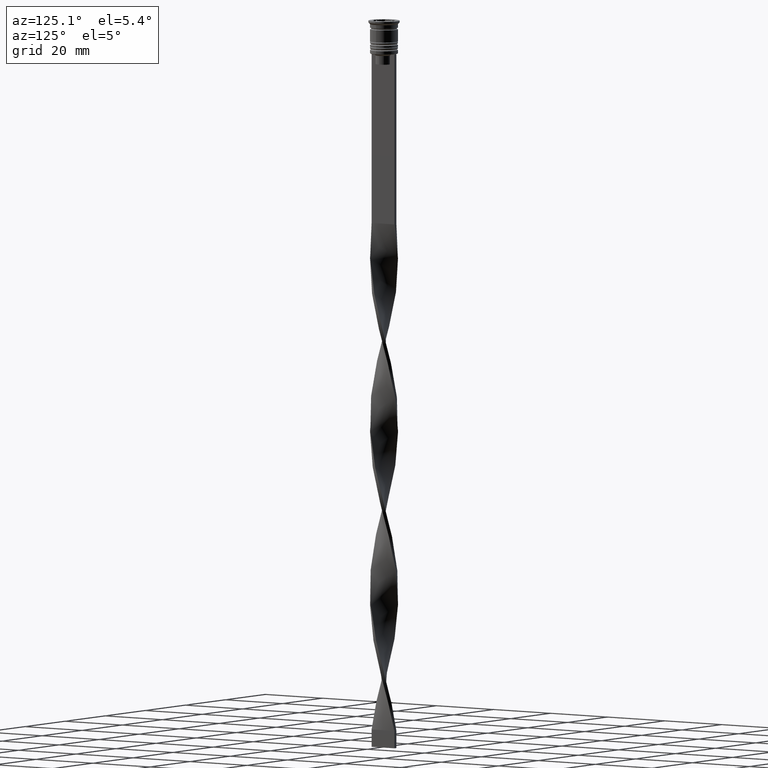
[diagram: clean part render]
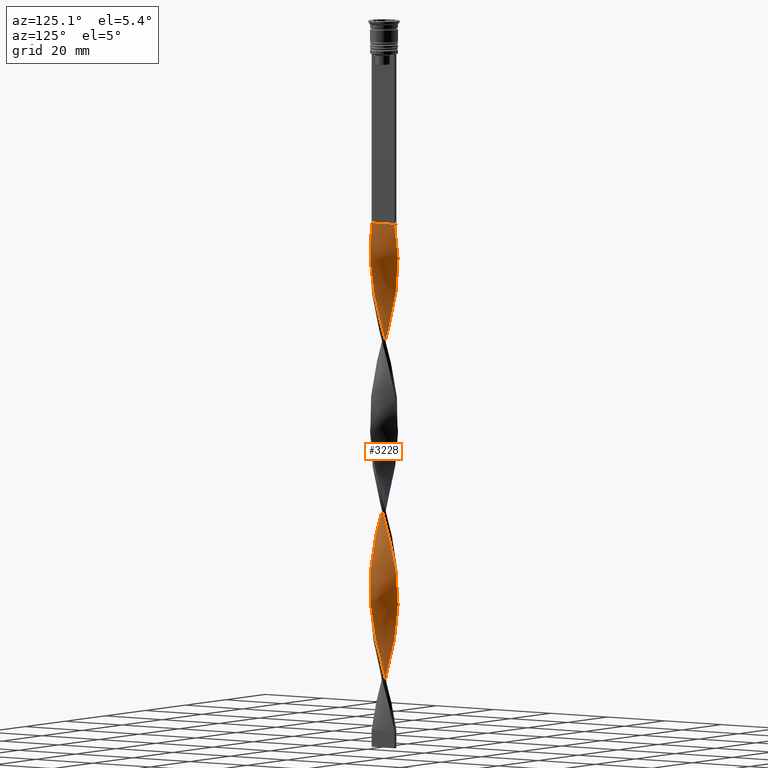
[diagram: same view with one face highlighted and labeled with its STEP entity id]
A machine part, auxiliary view. The second image highlights one B-rep face of the part: STEP entity #3228.
In plain terms, the highlighted face is a freeform B-spline surface patch.
Its self-contained STEP definition (entity closure, byte-faithful):
#5 = CARTESIAN_POINT ( 'NONE',  ( -0.1293454150318815721, 4.046331823121016136, -203.0686274509803582 ) ) ;
#6 = VERTEX_POINT ( 'NONE', #3925 ) ;
#14 = CARTESIAN_POINT ( 'NONE',  ( 3.493386227310586900, 2.011529931876904875, -141.5196078431372371 ) ) ;
#17 = VERTEX_POINT ( 'NONE', #3031 ) ;
#29 = CARTESIAN_POINT ( 'NONE',  ( 3.856468655234277065, 1.231739002543613681, -85.69607843137254122 ) ) ;
#48 = CARTESIAN_POINT ( 'NONE',  ( -0.6163684578805429526, -4.001202492166770597, -151.5392156862744741 ) ) ;
#50 = ORIENTED_EDGE ( 'NONE', *, *, #2481, .T. ) ;
#71 = CARTESIAN_POINT ( 'NONE',  ( 2.325278115975899951, 3.292883490705914795, -95.71568627450979250 ) ) ;
#89 = CARTESIAN_POINT ( 'NONE',  ( -3.493386227310585568, 2.011529931876906208, -121.4803921568627345 ) ) ;
#90 = CARTESIAN_POINT ( 'NONE',  ( 0.2435115214243295800, -4.023767157643892034, -110.0294117647058698 ) ) ;
#94 = CARTESIAN_POINT ( 'NONE',  ( -3.151094474987766958, 2.541679576361500104, -74.24509803921567652 ) ) ;
#103 = CARTESIAN_POINT ( 'NONE',  ( -0.4999999999999994449, 4.000000000000000000, -204.5000000000000000 ) ) ;
#107 = CARTESIAN_POINT ( 'NONE',  ( -3.856468655234277065, -1.231739002543614125, -134.3627450980391984 ) ) ;
#109 = CARTESIAN_POINT ( 'NONE',  ( -3.984134067727318040, -0.6137391387019219824, -184.4607843137254690 ) ) ;
#132 = CARTESIAN_POINT ( 'NONE',  ( 1.680620083644616569, -3.664084624357134334, -115.7549019607843093 ) ) ;
#138 = CARTESIAN_POINT ( 'NONE',  ( -0.2435115214243304405, 4.023767157643892034, -61.36274509803921262 ) ) ;
#150 = CARTESIAN_POINT ( 'NONE',  ( 1.911202779450789535, -3.549268084523846678, -161.5588235294117680 ) ) ;
#151 = CARTESIAN_POINT ( 'NONE',  ( -1.226484621108232531, -3.840017639827321805, -201.6372549019607732 ) ) ;
#157 = CARTESIAN_POINT ( 'NONE',  ( 0.5000000000000000000, 4.000000000000000000, -58.50000000000000000 ) ) ;
#169 = CARTESIAN_POINT ( 'NONE',  ( 3.856468655234276621, 1.231739002543613681, -85.69607843137254122 ) ) ;
#194 = CARTESIAN_POINT ( 'NONE',  ( -2.630408706874892033, -3.077414741952792632, -142.9509803921568789 ) ) ;
#200 = CARTESIAN_POINT ( 'NONE',  ( -3.984134067727318040, -0.6137391387019219824, -184.4607843137254690 ) ) ;
#211 = CARTESIAN_POINT ( 'NONE',  ( 4.029070884911789108, 0.1287936502943091699, -81.40196078431371518 ) ) ;
#217 = CARTESIAN_POINT ( 'NONE',  ( 4.029070884911789996, -0.1287936502943111128, -132.9313725490196134 ) ) ;
#219 = CARTESIAN_POINT ( 'NONE',  ( 0.1293454150318809337, 4.046331823121015248, -59.93137254901961342 ) ) ;
#227 = CARTESIAN_POINT ( 'NONE',  ( -3.936802525448487522, -0.8669405260007234659, -132.9313725490196134 ) ) ;
#229 =( BOUNDED_SURFACE ( )  B_SPLINE_SURFACE ( 1, 2, ( 
 ( #276, #219, #2668, #2089, #531, #3301, #1788, #2351, #3000, #1149, #1483, #515, #2632, #808, #3839, #3562, #2703, #549, #1109, #828, #2049, #3278, #2370, #3578, #844, #1185, #2409, #2332, #2107, #1768, #495, #3539, #2983, #2032, #3246, #3755, #90, #2507, #2860, #903, #132, #1944, #1526, #3154, #3411, #429, #1025, #3017, #1345, #3637, #2821, #704, #2247, #3335, #2838, #1303, #3318, #393, #14, #2429, #2126, #3453, #606, #1824, #1605, #1905, #3436, #292, #3039, #3138, #2204, #682, #588, #1621, #3771, #410, #3120, #2525, #3734, #982, #1004, #1639, #2566, #1042, #3715, #1806, #1502, #317, #109, #2746, #2228, #722, #1285, #2724, #1925, #3935, #1325, #1209, #2547, #2266, #151, #798, #3177 ),
 ( #3868, #2023, #1701, #1434, #3237, #2342, #2917, #2005, #2658, #1402, #2624, #3830, #507, #2936, #2896, #1063, #211, #1723, #1419, #169, #3790, #1101, #2640, #3472, #3848, #3812, #741, #1382, #452, #1966, #3531, #3514, #1117, #2287, #3496, #3552, #1986, #820, #2953, #765, #2042, #469, #1665, #3256, #2879, #524, #3218, #783, #2306, #1084, #2324, #1740, #227, #1363, #2605, #2583, #3201, #1682, #486, #194, #3905, #1219, #562, #3052, #1495, #330, #3887, #1537, #2713, #1141, #2973, #3629, #2058, #3011, #2076, #2696, #286, #2757, #895, #581, #2363, #2118, #2440, #1798, #875, #3571, #3923, #1199, #2421, #3328, #1816, #1780, #1159, #3028, #599, #306, #2994, #2679, #1516, #2738, #838, #5, #1176 ) ),
 .UNSPECIFIED., .F., .F., .T. ) 
 B_SPLINE_SURFACE_WITH_KNOTS ( ( 2, 2 ),
 ( 3, 2, 2, 2, 2, 2, 2, 2, 2, 2, 2, 2, 2, 2, 2, 2, 2, 2, 2, 2, 2, 2, 2, 2, 2, 2, 2, 2, 2, 2, 2, 2, 2, 2, 2, 2, 2, 2, 2, 2, 2, 2, 2, 2, 2, 2, 2, 2, 2, 2, 2, 3 ),
 ( 0.000000000000000000, 1.000000000000000000 ),
 ( 0.000000000000000000, 0.01470588235294117627, 0.02941176470588235253, 0.04411764705882353227, 0.05882352941176470507, 0.07352941176470588480, 0.08823529411764706454, 0.1029411764705882304, 0.1176470588235294101, 0.1323529411764705899, 0.1470588235294117696, 0.1617647058823529493, 0.1764705882352941291, 0.1911764705882352811, 0.2058823529411764608, 0.2205882352941176405, 0.2352941176470588203, 0.2500000000000000000, 0.2647058823529411797, 0.2794117647058823595, 0.2941176470588235392, 0.3088235294117647189, 0.3235294117647058987, 0.3382352941176470784, 0.3529411764705882582, 0.3676470588235294379, 0.3823529411764705621, 0.3970588235294117418, 0.4117647058823529216, 0.4264705882352941013, 0.4411764705882352811, 0.4558823529411764608, 0.4705882352941176405, 0.4852941176470588203, 0.5000000000000000000, 0.5147058823529411242, 0.5294117647058823595, 0.5441176470588234837, 0.5588235294117647189, 0.5735294117647058432, 0.5882352941176470784, 0.6029411764705882026, 0.6176470588235294379, 0.6323529411764705621, 0.6470588235294117974, 0.6617647058823529216, 0.6764705882352941568, 0.6911764705882352811, 0.7058823529411765163, 0.7205882352941176405, 0.7352941176470588758, 0.7500000000000000000 ),
 .UNSPECIFIED. ) 
 GEOMETRIC_REPRESENTATION_ITEM ( )  RATIONAL_B_SPLINE_SURFACE ( (
 ( 1.000000000000000000, 0.9957341762950344677, 1.000000000000000000, 0.9957341762950344677, 1.000000000000000000, 0.9957341762950344677, 1.000000000000000000, 0.9957341762950344677, 1.000000000000000000, 0.9957341762950344677, 1.000000000000000000, 0.9957341762950344677, 1.000000000000000000, 0.9957341762950344677, 1.000000000000000000, 0.9957341762950344677, 1.000000000000000000, 0.9957341762950344677, 1.000000000000000000, 0.9957341762950344677, 1.000000000000000000, 0.9957341762950344677, 1.000000000000000000, 0.9957341762950344677, 1.000000000000000000, 0.9957341762950344677, 1.000000000000000000, 0.9957341762950344677, 1.000000000000000000, 0.9957341762950344677, 1.000000000000000000, 0.9957341762950344677, 1.000000000000000000, 0.9957341762950344677, 1.000000000000000000, 0.9957341762950344677, 1.000000000000000000, 0.9957341762950344677, 1.000000000000000000, 0.9957341762950344677, 1.000000000000000000, 0.9957341762950344677, 1.000000000000000000, 0.9957341762950344677, 1.000000000000000000, 0.9957341762950344677, 1.000000000000000000, 0.9957341762950344677, 1.000000000000000000, 0.9957341762950344677, 1.000000000000000000, 0.9957341762950344677, 1.000000000000000000, 0.9957341762950344677, 1.000000000000000000, 0.9957341762950344677, 1.000000000000000000, 0.9957341762950344677, 1.000000000000000000, 0.9957341762950344677, 1.000000000000000000, 0.9957341762950344677, 1.000000000000000000, 0.9957341762950344677, 1.000000000000000000, 0.9957341762950344677, 1.000000000000000000, 0.9957341762950344677, 1.000000000000000000, 0.9957341762950344677, 1.000000000000000000, 0.9957341762950344677, 1.000000000000000000, 0.9957341762950344677, 1.000000000000000000, 0.9957341762950344677, 1.000000000000000000, 0.9957341762950344677, 1.000000000000000000, 0.9957341762950344677, 1.000000000000000000, 0.9957341762950344677, 1.000000000000000000, 0.9957341762950344677, 1.000000000000000000, 0.9957341762950344677, 1.000000000000000000, 0.9957341762950344677, 1.000000000000000000, 0.9957341762950344677, 1.000000000000000000, 0.9957341762950344677, 1.000000000000000000, 0.9957341762950344677, 1.000000000000000000, 0.9957341762950344677, 1.000000000000000000, 0.9957341762950344677, 1.000000000000000000, 0.9957341762950344677, 1.000000000000000000, 0.9957341762950344677, 1.000000000000000000),
 ( 1.000000000000000000, 0.9957341762950344677, 1.000000000000000000, 0.9957341762950344677, 1.000000000000000000, 0.9957341762950344677, 1.000000000000000000, 0.9957341762950344677, 1.000000000000000000, 0.9957341762950344677, 1.000000000000000000, 0.9957341762950344677, 1.000000000000000000, 0.9957341762950344677, 1.000000000000000000, 0.9957341762950344677, 1.000000000000000000, 0.9957341762950344677, 1.000000000000000000, 0.9957341762950344677, 1.000000000000000000, 0.9957341762950344677, 1.000000000000000000, 0.9957341762950344677, 1.000000000000000000, 0.9957341762950344677, 1.000000000000000000, 0.9957341762950344677, 1.000000000000000000, 0.9957341762950344677, 1.000000000000000000, 0.9957341762950344677, 1.000000000000000000, 0.9957341762950344677, 1.000000000000000000, 0.9957341762950344677, 1.000000000000000000, 0.9957341762950344677, 1.000000000000000000, 0.9957341762950344677, 1.000000000000000000, 0.9957341762950344677, 1.000000000000000000, 0.9957341762950344677, 1.000000000000000000, 0.9957341762950344677, 1.000000000000000000, 0.9957341762950344677, 1.000000000000000000, 0.9957341762950344677, 1.000000000000000000, 0.9957341762950344677, 1.000000000000000000, 0.9957341762950344677, 1.000000000000000000, 0.9957341762950344677, 1.000000000000000000, 0.9957341762950344677, 1.000000000000000000, 0.9957341762950344677, 1.000000000000000000, 0.9957341762950344677, 1.000000000000000000, 0.9957341762950344677, 1.000000000000000000, 0.9957341762950344677, 1.000000000000000000, 0.9957341762950344677, 1.000000000000000000, 0.9957341762950344677, 1.000000000000000000, 0.9957341762950344677, 1.000000000000000000, 0.9957341762950344677, 1.000000000000000000, 0.9957341762950344677, 1.000000000000000000, 0.9957341762950344677, 1.000000000000000000, 0.9957341762950344677, 1.000000000000000000, 0.9957341762950344677, 1.000000000000000000, 0.9957341762950344677, 1.000000000000000000, 0.9957341762950344677, 1.000000000000000000, 0.9957341762950344677, 1.000000000000000000, 0.9957341762950344677, 1.000000000000000000, 0.9957341762950344677, 1.000000000000000000, 0.9957341762950344677, 1.000000000000000000, 0.9957341762950344677, 1.000000000000000000, 0.9957341762950344677, 1.000000000000000000, 0.9957341762950344677, 1.000000000000000000, 0.9957341762950344677, 1.000000000000000000) ) ) 
 REPRESENTATION_ITEM ( '' )  SURFACE ( )  );
#234 = CARTESIAN_POINT ( 'NONE',  ( 0.6163684578805417313, -4.001202492166770597, -111.4607843137254974 ) ) ;
#256 = CARTESIAN_POINT ( 'NONE',  ( 0.2435115214243295800, -4.023767157643892034, -110.0294117647058698 ) ) ;
#274 = CARTESIAN_POINT ( 'NONE',  ( -0.6163684578805417313, 4.001202492166770597, -160.1274509803921831 ) ) ;
#276 = CARTESIAN_POINT ( 'NONE',  ( 0.5000000000000000000, 4.000000000000000000, -58.50000000000000000 ) ) ;
#286 = CARTESIAN_POINT ( 'NONE',  ( 3.064287033196558596, -2.619187847059357921, -167.2843137254901933 ) ) ;
#290 = CARTESIAN_POINT ( 'NONE',  ( 1.582314657248345080, -3.726367102775659301, -62.79411764705881893 ) ) ;
#292 = CARTESIAN_POINT ( 'NONE',  ( 0.8706545849681190941, 3.953668176878985641, -154.4019607843137294 ) ) ;
#306 = CARTESIAN_POINT ( 'NONE',  ( 2.020147525076906536, 3.508352239459040067, -194.4803921568627914 ) ) ;
#317 = CARTESIAN_POINT ( 'NONE',  ( -4.041005374160881125, -0.2445547488692189630, -183.0294117647059124 ) ) ;
#330 = CARTESIAN_POINT ( 'NONE',  ( -0.6163684578805430636, -4.001202492166771485, -151.5392156862744741 ) ) ;
#351 = CARTESIAN_POINT ( 'NONE',  ( -2.890751590931330828, -2.809547159157144591, -141.5196078431372371 ) ) ;
#373 = CARTESIAN_POINT ( 'NONE',  ( 2.240090901653234656, -3.372169066272035387, -65.65686274509803866 ) ) ;
#392 = CARTESIAN_POINT ( 'NONE',  ( -4.029070884911789996, -0.1287936502943096417, -130.0686274509803866 ) ) ;
#393 = CARTESIAN_POINT ( 'NONE',  ( 3.679781925323283076, 1.687820026322619293, -140.0882352941176237 ) ) ;
#409 = CARTESIAN_POINT ( 'NONE',  ( 0.6163684578805426195, 4.001202492166770597, -102.8725490196078312 ) ) ;
#410 = CARTESIAN_POINT ( 'NONE',  ( -2.020147525076906536, 3.508352239459040067, -165.8529411764705799 ) ) ;
#429 = CARTESIAN_POINT ( 'NONE',  ( 3.151094474987766958, -2.541679576361500992, -122.9117647058823479 ) ) ;
#437 = CARTESIAN_POINT ( 'NONE',  ( -2.020147525076906980, 3.508352239459040067, -68.51960784313725128 ) ) ;
#451 = CARTESIAN_POINT ( 'NONE',  ( 1.582314657248345080, -3.726367102775659301, -160.1274509803921831 ) ) ;
#452 = CARTESIAN_POINT ( 'NONE',  ( 1.680620083644616125, 3.664084624357134778, -98.57843137254901933 ) ) ;
#458 = CARTESIAN_POINT ( 'NONE',  ( -3.936802525448486634, 0.8669405260007252423, -81.40196078431371518 ) ) ;
#465 = VERTEX_POINT ( 'NONE', #2913 ) ;
#469 = CARTESIAN_POINT ( 'NONE',  ( -2.821583537095226468, 2.903135856687523830, -117.1862745098039369 ) ) ;
#473 = CARTESIAN_POINT ( 'NONE',  ( -3.803522343308519016, -1.335371777428621565, -89.99019607843136725 ) ) ;
#486 = CARTESIAN_POINT ( 'NONE',  ( -2.890751590931330828, -2.809547159157144591, -141.5196078431372371 ) ) ;
#495 = CARTESIAN_POINT ( 'NONE',  ( -1.911202779450789535, -3.549268084523846678, -101.4411764705882320 ) ) ;
#506 = CARTESIAN_POINT ( 'NONE',  ( 3.710471077655235206, 1.575564781874741138, -184.4607843137254690 ) ) ;
#507 = CARTESIAN_POINT ( 'NONE',  ( 3.803522343308519016, -1.335371777428622009, -75.67647058823528994 ) ) ;
#513 = CARTESIAN_POINT ( 'NONE',  ( 3.710471077655234762, -1.575564781874742026, -127.2058823529411740 ) ) ;
#515 = CARTESIAN_POINT ( 'NONE',  ( -3.151094474987767402, 2.541679576361500104, -74.24509803921567652 ) ) ;
#524 = CARTESIAN_POINT ( 'NONE',  ( -3.679781925323282632, 1.687820026322619960, -122.9117647058823479 ) ) ;
#529 = CARTESIAN_POINT ( 'NONE',  ( -3.710471077655235206, 1.575564781874740694, -175.8725490196078454 ) ) ;
#531 = CARTESIAN_POINT ( 'NONE',  ( -0.9787305500464337227, 3.910509750710999821, -64.22549019607842524 ) ) ;
#545 = CARTESIAN_POINT ( 'NONE',  ( 3.493386227310586900, 2.011529931876904875, -141.5196078431372371 ) ) ;
#549 = CARTESIAN_POINT ( 'NONE',  ( -4.017136395662697979, 0.5021420494578374694, -82.83333333333332860 ) ) ;
#562 = CARTESIAN_POINT ( 'NONE',  ( -1.680620083644617901, -3.664084624357133446, -147.2450980392156907 ) ) ;
#569 = CARTESIAN_POINT ( 'NONE',  ( 0.9787305500464342778, -3.910509750710998933, -112.8921568627450966 ) ) ;
#581 = CARTESIAN_POINT ( 'NONE',  ( 3.679781925323283076, -1.687820026322619293, -171.5784313725490335 ) ) ;
#586 = CARTESIAN_POINT ( 'NONE',  ( -4.029070884911789996, 0.1287936502943097528, -181.5980392156862706 ) ) ;
#588 = CARTESIAN_POINT ( 'NONE',  ( -0.9787305500464337227, 3.910509750710999821, -161.5588235294117680 ) ) ;
#599 = CARTESIAN_POINT ( 'NONE',  ( 2.325278115975899951, 3.292883490705914795, -193.0490196078431211 ) ) ;
#606 = CARTESIAN_POINT ( 'NONE',  ( 2.530837219374231672, 3.137652461479777610, -147.2450980392156907 ) ) ;
#644 = CARTESIAN_POINT ( 'NONE',  ( -1.680620083644617901, -3.664084624357133446, -147.2450980392156907 ) ) ;
#663 = CARTESIAN_POINT ( 'NONE',  ( 4.029070884911789108, 0.1287936502943091699, -81.40196078431371518 ) ) ;
#681 = CARTESIAN_POINT ( 'NONE',  ( -3.064287033196558596, 2.619187847059357921, -118.6176470588235219 ) ) ;
#682 = CARTESIAN_POINT ( 'NONE',  ( -0.6163684578805417313, 4.001202492166771485, -160.1274509803922115 ) ) ;
#703 = CARTESIAN_POINT ( 'NONE',  ( 3.306990529297890724, -2.335239837431193788, -71.38235294117646390 ) ) ;
#704 = CARTESIAN_POINT ( 'NONE',  ( 4.017136395662697979, -0.5021420494578380245, -131.5000000000000000 ) ) ;
#708 = CARTESIAN_POINT ( 'NONE',  ( -3.493386227310586456, -2.011529931876905319, -92.85294117647057988 ) ) ;
#710 = CARTESIAN_POINT ( 'NONE',  ( 0.5000000000000000000, -4.000000000000000000, -58.50000000000000000 ) ) ;
#721 = CARTESIAN_POINT ( 'NONE',  ( 0.9787305500464337227, 3.910509750710999821, -101.4411764705882320 ) ) ;
#722 = CARTESIAN_POINT ( 'NONE',  ( -3.679781925323283076, -1.687820026322619738, -188.7549019607843093 ) ) ;
#729 = CARTESIAN_POINT ( 'NONE',  ( -0.4999999999999997780, 1.333333333333333481, -204.5000000000000000 ) ) ;
#741 = CARTESIAN_POINT ( 'NONE',  ( 2.325278115975899951, 3.292883490705914795, -95.71568627450979250 ) ) ;
#746 = CARTESIAN_POINT ( 'NONE',  ( -1.582314657248345968, -3.726367102775659301, -102.8725490196078312 ) ) ;
#763 = CARTESIAN_POINT ( 'NONE',  ( 0.8706545849681190941, -3.953668176878985197, -157.2647058823529278 ) ) ;
#765 = CARTESIAN_POINT ( 'NONE',  ( -2.240090901653234656, 3.372169066272035387, -114.3235294117646959 ) ) ;
#770 = CARTESIAN_POINT ( 'NONE',  ( -3.856468655234277065, 1.231739002543613237, -79.97058823529411598 ) ) ;
#772 = ORIENTED_EDGE ( 'NONE', *, *, #3083, .F. ) ;
#783 = CARTESIAN_POINT ( 'NONE',  ( -3.927262761293754956, 0.9829235285346251683, -125.7745098039216032 ) ) ;
#797 = CARTESIAN_POINT ( 'NONE',  ( 3.493386227310586012, -2.011529931876905763, -170.1470588235293917 ) ) ;
#798 = CARTESIAN_POINT ( 'NONE',  ( -0.8706545849681186500, -3.953668176878985641, -203.0686274509803582 ) ) ;
#804 = CARTESIAN_POINT ( 'NONE',  ( 0.5000000000000000000, 4.000000000000000000, -155.8333333333333144 ) ) ;
#808 = CARTESIAN_POINT ( 'NONE',  ( -3.564473500076194235, 1.919390561205869261, -77.10784313725490335 ) ) ;
#820 = CARTESIAN_POINT ( 'NONE',  ( -1.582314657248345080, 3.726367102775659745, -111.4607843137254974 ) ) ;
#826 = CARTESIAN_POINT ( 'NONE',  ( -3.357783987531980152, 2.230535068783684682, -173.0098039215686185 ) ) ;
#828 = CARTESIAN_POINT ( 'NONE',  ( -4.041005374160881125, -0.2445547488692189630, -85.69607843137254122 ) ) ;
#838 = CARTESIAN_POINT ( 'NONE',  ( 0.2435115214243305515, 4.023767157643892034, -201.6372549019607732 ) ) ;
#842 = CARTESIAN_POINT ( 'NONE',  ( 2.240090901653234212, 3.372169066272035831, -148.6764705882353326 ) ) ;
#844 = CARTESIAN_POINT ( 'NONE',  ( -3.493386227310586456, -2.011529931876905319, -92.85294117647057988 ) ) ;
#859 = CARTESIAN_POINT ( 'NONE',  ( -2.020147525076906980, 3.508352239459040067, -165.8529411764705799 ) ) ;
#875 = CARTESIAN_POINT ( 'NONE',  ( 4.029070884911789108, 0.1287936502943091699, -178.7352941176470438 ) ) ;
#883 = CARTESIAN_POINT ( 'NONE',  ( -0.9787305500464337227, 3.910509750710999821, -161.5588235294117680 ) ) ;
#895 = CARTESIAN_POINT ( 'NONE',  ( 3.493386227310586012, -2.011529931876905763, -170.1470588235293917 ) ) ;
#901 = CARTESIAN_POINT ( 'NONE',  ( -1.582314657248345968, -3.726367102775659301, -200.2058823529411882 ) ) ;
#903 = CARTESIAN_POINT ( 'NONE',  ( 1.341092642212325936, -3.819817009255230822, -114.3235294117646959 ) ) ;
#907 =( BOUNDED_CURVE ( )  B_SPLINE_CURVE ( 2, ( #157, #1029, #138, #2251, #1949, #2294, #1930, #437, #3740, #1645, #2530, #94, #1308, #1349, #2588, #770, #458, #3206, #1010, #2233, #1368, #2843, #473, #2900, #708, #2570, #1625, #3796, #3141, #3478, #1070, #746, #1972, #3185, #3836, #2629, #256, #234, #569, #1729, #2942, #3297, #2406, #2329, #1481, #1441, #3576, #1106, #513, #2047, #3243, #2645, #217, #3615, #3852, #2924, #3536, #1124, #545, #2348, #2387, #1786, #1763, #842, #3875, #1424, #2998, #3893, #804, #1164, #1746, #274, #883, #3559, #1147, #859, #2701, #2063, #3261, #2104, #826, #3910, #529, #1182, #2959, #3316, #586, #2029, #200, #2665, #2368, #1463, #1407, #3276, #3593, #2979, #2684, #2084, #2445, #901, #2123, #3697, #1822 ),
 .UNSPECIFIED., .F., .T. ) 
 B_SPLINE_CURVE_WITH_KNOTS ( ( 3, 2, 2, 2, 2, 2, 2, 2, 2, 2, 2, 2, 2, 2, 2, 2, 2, 2, 2, 2, 2, 2, 2, 2, 2, 2, 2, 2, 2, 2, 2, 2, 2, 2, 2, 2, 2, 2, 2, 2, 2, 2, 2, 2, 2, 2, 2, 2, 2, 2, 2, 3 ),
 ( 0.000000000000000000, 0.01470588235294117453, 0.02941176470588234906, 0.04411764705882353227, 0.05882352941176469813, 0.07352941176470588480, 0.08823529411764706454, 0.1029411764705882443, 0.1176470588235293963, 0.1323529411764705899, 0.1470588235294117696, 0.1617647058823529493, 0.1764705882352941291, 0.1911764705882352811, 0.2058823529411764885, 0.2205882352941176405, 0.2352941176470587925, 0.2500000000000000000, 0.2647058823529411797, 0.2794117647058823595, 0.2941176470588235392, 0.3088235294117647189, 0.3235294117647058987, 0.3382352941176470229, 0.3529411764705882582, 0.3676470588235294379, 0.3823529411764705621, 0.3970588235294117418, 0.4117647058823529771, 0.4264705882352941013, 0.4411764705882352811, 0.4558823529411764608, 0.4705882352941175850, 0.4852941176470588203, 0.5000000000000000000, 0.5147058823529411242, 0.5294117647058823595, 0.5441176470588234837, 0.5588235294117647189, 0.5735294117647058432, 0.5882352941176470784, 0.6029411764705882026, 0.6176470588235294379, 0.6323529411764705621, 0.6470588235294117974, 0.6617647058823529216, 0.6764705882352940458, 0.6911764705882351700, 0.7058823529411765163, 0.7205882352941176405, 0.7352941176470588758, 0.7500000000000000000 ),
 .UNSPECIFIED. ) 
 CURVE ( )  GEOMETRIC_REPRESENTATION_ITEM ( )  RATIONAL_B_SPLINE_CURVE ( ( 1.000000000000000000, 0.9957341762950344677, 1.000000000000000000, 0.9957341762950344677, 1.000000000000000000, 0.9957341762950344677, 1.000000000000000000, 0.9957341762950344677, 1.000000000000000000, 0.9957341762950344677, 1.000000000000000000, 0.9957341762950344677, 1.000000000000000000, 0.9957341762950344677, 1.000000000000000000, 0.9957341762950344677, 1.000000000000000000, 0.9957341762950344677, 1.000000000000000000, 0.9957341762950344677, 1.000000000000000000, 0.9957341762950344677, 1.000000000000000000, 0.9957341762950344677, 1.000000000000000000, 0.9957341762950344677, 1.000000000000000000, 0.9957341762950344677, 1.000000000000000000, 0.9957341762950344677, 1.000000000000000000, 0.9957341762950344677, 1.000000000000000000, 0.9957341762950344677, 1.000000000000000000, 0.9957341762950344677, 1.000000000000000000, 0.9957341762950344677, 1.000000000000000000, 0.9957341762950344677, 1.000000000000000000, 0.9957341762950344677, 1.000000000000000000, 0.9957341762950344677, 1.000000000000000000, 0.9957341762950344677, 1.000000000000000000, 0.9957341762950344677, 1.000000000000000000, 0.9957341762950344677, 1.000000000000000000, 0.9957341762950344677, 1.000000000000000000, 0.9957341762950344677, 1.000000000000000000, 0.9957341762950344677, 1.000000000000000000, 0.9957341762950344677, 1.000000000000000000, 0.9957341762950344677, 1.000000000000000000, 0.9957341762950344677, 1.000000000000000000, 0.9957341762950344677, 1.000000000000000000, 0.9957341762950344677, 1.000000000000000000, 0.9957341762950344677, 1.000000000000000000, 0.9957341762950344677, 1.000000000000000000, 0.9957341762950344677, 1.000000000000000000, 0.9957341762950344677, 1.000000000000000000, 0.9957341762950344677, 1.000000000000000000, 0.9957341762950344677, 1.000000000000000000, 0.9957341762950344677, 1.000000000000000000, 0.9957341762950344677, 1.000000000000000000, 0.9957341762950344677, 1.000000000000000000, 0.9957341762950344677, 1.000000000000000000, 0.9957341762950344677, 1.000000000000000000, 0.9957341762950344677, 1.000000000000000000, 0.9957341762950344677, 1.000000000000000000, 0.9957341762950344677, 1.000000000000000000, 0.9957341762950344677, 1.000000000000000000, 0.9957341762950344677, 1.000000000000000000, 0.9957341762950344677, 1.000000000000000000, 0.9957341762950344677, 1.000000000000000000 ) ) 
 REPRESENTATION_ITEM ( '' )  );
#942 = CARTESIAN_POINT ( 'NONE',  ( 0.2435115214243305515, 4.023767157643892034, -104.3039215686274446 ) ) ;
#963 = CARTESIAN_POINT ( 'NONE',  ( 3.357783987531980152, 2.230535068783684238, -89.99019607843136725 ) ) ;
#981 = CARTESIAN_POINT ( 'NONE',  ( -2.240090901653234212, 3.372169066272035387, -114.3235294117646959 ) ) ;
#982 = CARTESIAN_POINT ( 'NONE',  ( -3.151094474987767402, 2.541679576361500104, -171.5784313725490335 ) ) ;
#1003 = CARTESIAN_POINT ( 'NONE',  ( -3.936802525448487522, -0.8669405260007234659, -132.9313725490196134 ) ) ;
#1004 = CARTESIAN_POINT ( 'NONE',  ( -3.357783987531980152, 2.230535068783684682, -173.0098039215686185 ) ) ;
#1010 = CARTESIAN_POINT ( 'NONE',  ( -4.029070884911789996, 0.1287936502943097528, -84.26470588235294201 ) ) ;
#1024 = CARTESIAN_POINT ( 'NONE',  ( -0.8706545849681194271, 3.953668176878985197, -108.5980392156862706 ) ) ;
#1025 = CARTESIAN_POINT ( 'NONE',  ( 3.357783987531981040, -2.230535068783683350, -124.3431372549019471 ) ) ;
#1029 = CARTESIAN_POINT ( 'NONE',  ( 0.1293454150318809337, 4.046331823121015248, -59.93137254901961342 ) ) ;
#1041 = CARTESIAN_POINT ( 'NONE',  ( 3.803522343308519016, -1.335371777428622009, -173.0098039215686185 ) ) ;
#1042 = CARTESIAN_POINT ( 'NONE',  ( -3.856468655234276621, 1.231739002543613237, -177.3039215686274304 ) ) ;
#1049 = CARTESIAN_POINT ( 'NONE',  ( -0.5000000000000002220, -1.333333333333333481, -204.5000000000000000 ) ) ;
#1061 = CARTESIAN_POINT ( 'NONE',  ( -0.4999999999999994449, 4.000000000000000000, -204.5000000000000000 ) ) ;
#1063 = CARTESIAN_POINT ( 'NONE',  ( 4.041005374160881125, -0.2445547488692185190, -79.97058823529411598 ) ) ;
#1070 = CARTESIAN_POINT ( 'NONE',  ( -1.911202779450789535, -3.549268084523846678, -101.4411764705882320 ) ) ;
#1083 = CARTESIAN_POINT ( 'NONE',  ( 4.017136395662697979, 0.5021420494578370253, -180.1666666666666288 ) ) ;
#1084 = CARTESIAN_POINT ( 'NONE',  ( -4.041005374160881125, 0.2445547488692170757, -128.6372549019607447 ) ) ;
#1101 = CARTESIAN_POINT ( 'NONE',  ( 3.564473500076194235, 1.919390561205868817, -88.55882352941175384 ) ) ;
#1106 = CARTESIAN_POINT ( 'NONE',  ( 3.564473500076193790, -1.919390561205869039, -125.7745098039216032 ) ) ;
#1109 = CARTESIAN_POINT ( 'NONE',  ( -4.029070884911789996, 0.1287936502943097528, -84.26470588235294201 ) ) ;
#1116 = CARTESIAN_POINT ( 'NONE',  ( 3.679781925323283076, -1.687820026322619293, -171.5784313725490620 ) ) ;
#1117 = CARTESIAN_POINT ( 'NONE',  ( 0.2435115214243305515, 4.023767157643892034, -104.3039215686274446 ) ) ;
#1118 = ORIENTED_EDGE ( 'NONE', *, *, #3837, .F. ) ;
#1124 = CARTESIAN_POINT ( 'NONE',  ( 3.679781925323283076, 1.687820026322619293, -140.0882352941176237 ) ) ;
#1141 = CARTESIAN_POINT ( 'NONE',  ( 0.8706545849681190941, -3.953668176878984752, -157.2647058823529278 ) ) ;
#1147 = CARTESIAN_POINT ( 'NONE',  ( -1.680620083644616125, 3.664084624357134778, -164.4215686274509665 ) ) ;
#1149 = CARTESIAN_POINT ( 'NONE',  ( -2.630408706874893365, 3.077414741952792188, -71.38235294117646390 ) ) ;
#1159 = CARTESIAN_POINT ( 'NONE',  ( 2.890751590931330384, 2.809547159157145035, -190.1862745098039227 ) ) ;
#1164 = CARTESIAN_POINT ( 'NONE',  ( 0.1293454150318809337, 4.046331823121015248, -157.2647058823529278 ) ) ;
#1166 = FACE_OUTER_BOUND ( 'NONE', #1229, .T. ) ;
#1176 = CARTESIAN_POINT ( 'NONE',  ( -0.4999999999999994449, 4.000000000000000000, -204.5000000000000000 ) ) ;
#1182 = CARTESIAN_POINT ( 'NONE',  ( -3.856468655234277065, 1.231739002543613237, -177.3039215686274588 ) ) ;
#1185 = CARTESIAN_POINT ( 'NONE',  ( -3.306990529297891168, -2.335239837431193788, -94.28431372549020750 ) ) ;
#1199 = CARTESIAN_POINT ( 'NONE',  ( 3.856468655234276621, 1.231739002543613681, -183.0294117647059124 ) ) ;
#1209 = CARTESIAN_POINT ( 'NONE',  ( -2.240090901653235544, -3.372169066272034499, -197.3431372549019898 ) ) ;
#1219 = CARTESIAN_POINT ( 'NONE',  ( -2.020147525076906980, -3.508352239459039623, -145.8137254901960489 ) ) ;
#1229 = EDGE_LOOP ( 'NONE', ( #3711, #50, #772, #1118 ) ) ;
#1241 = CARTESIAN_POINT ( 'NONE',  ( -3.357783987531979708, -2.230535068783685571, -138.6568627450980387 ) ) ;
#1264 = CARTESIAN_POINT ( 'NONE',  ( -0.2435115214243293580, -4.023767157643892034, -152.9705882352941160 ) ) ;
#1284 = CARTESIAN_POINT ( 'NONE',  ( 2.630408706874892921, 3.077414741952791744, -94.28431372549020750 ) ) ;
#1285 = CARTESIAN_POINT ( 'NONE',  ( -3.493386227310586456, -2.011529931876905319, -190.1862745098039227 ) ) ;
#1302 = CARTESIAN_POINT ( 'NONE',  ( 2.890751590931330384, 2.809547159157145035, -92.85294117647057988 ) ) ;
#1303 = CARTESIAN_POINT ( 'NONE',  ( 3.927262761293754956, 0.9829235285346239470, -137.2254901960784821 ) ) ;
#1308 = CARTESIAN_POINT ( 'NONE',  ( -3.357783987531980152, 2.230535068783684682, -75.67647058823528994 ) ) ;
#1324 = CARTESIAN_POINT ( 'NONE',  ( 4.017136395662697979, 0.5021420494578370253, -82.83333333333332860 ) ) ;
#1325 = CARTESIAN_POINT ( 'NONE',  ( -2.530837219374230340, -3.137652461479778943, -195.9117647058823479 ) ) ;
#1345 = CARTESIAN_POINT ( 'NONE',  ( 3.710471077655234762, -1.575564781874742026, -127.2058823529411740 ) ) ;
#1349 = CARTESIAN_POINT ( 'NONE',  ( -3.564473500076193790, 1.919390561205869261, -77.10784313725490335 ) ) ;
#1362 = CARTESIAN_POINT ( 'NONE',  ( 2.020147525076906980, 3.508352239459040067, -194.4803921568627629 ) ) ;
#1363 = CARTESIAN_POINT ( 'NONE',  ( -3.856468655234276621, -1.231739002543614125, -134.3627450980391984 ) ) ;
#1368 = CARTESIAN_POINT ( 'NONE',  ( -3.984134067727318040, -0.6137391387019219824, -87.12745098039215463 ) ) ;
#1380 = CARTESIAN_POINT ( 'NONE',  ( 3.936802525448487522, 0.8669405260007247982, -181.5980392156862706 ) ) ;
#1382 = CARTESIAN_POINT ( 'NONE',  ( 2.020147525076906536, 3.508352239459040067, -97.14705882352939170 ) ) ;
#1401 = CARTESIAN_POINT ( 'NONE',  ( 3.564473500076193790, 1.919390561205868817, -185.8921568627451109 ) ) ;
#1402 = CARTESIAN_POINT ( 'NONE',  ( 3.306990529297891168, -2.335239837431193788, -71.38235294117646390 ) ) ;
#1407 = CARTESIAN_POINT ( 'NONE',  ( -3.493386227310586456, -2.011529931876905319, -190.1862745098039227 ) ) ;
#1418 = CARTESIAN_POINT ( 'NONE',  ( 3.306990529297890724, -2.335239837431193788, -168.7156862745097783 ) ) ;
#1419 = CARTESIAN_POINT ( 'NONE',  ( 3.936802525448487522, 0.8669405260007247982, -84.26470588235294201 ) ) ;
#1424 = CARTESIAN_POINT ( 'NONE',  ( 1.582314657248346412, 3.726367102775658413, -151.5392156862744741 ) ) ;
#1434 = CARTESIAN_POINT ( 'NONE',  ( 1.582314657248345080, -3.726367102775659745, -62.79411764705881893 ) ) ;
#1441 = CARTESIAN_POINT ( 'NONE',  ( 3.151094474987766514, -2.541679576361500992, -122.9117647058823621 ) ) ;
#1463 = CARTESIAN_POINT ( 'NONE',  ( -3.679781925323283076, -1.687820026322619738, -188.7549019607843093 ) ) ;
#1481 = CARTESIAN_POINT ( 'NONE',  ( 2.890751590931329496, -2.809547159157145924, -121.4803921568627345 ) ) ;
#1483 = CARTESIAN_POINT ( 'NONE',  ( -2.890751590931329940, 2.809547159157145479, -72.81372549019607732 ) ) ;
#1495 = CARTESIAN_POINT ( 'NONE',  ( -0.9787305500464340557, -3.910509750710999821, -150.1078431372548891 ) ) ;
#1502 = CARTESIAN_POINT ( 'NONE',  ( -4.029070884911789996, 0.1287936502943097528, -181.5980392156862706 ) ) ;
#1516 = CARTESIAN_POINT ( 'NONE',  ( 0.9787305500464337227, 3.910509750710999821, -198.7745098039215463 ) ) ;
#1526 = CARTESIAN_POINT ( 'NONE',  ( 2.325278115975899507, -3.292883490705915239, -118.6176470588235219 ) ) ;
#1537 = CARTESIAN_POINT ( 'NONE',  ( 0.1293454150318810725, -4.046331823121016136, -154.4019607843137294 ) ) ;
#1543 = CARTESIAN_POINT ( 'NONE',  ( -4.017136395662697979, -0.5021420494578364702, -131.5000000000000000 ) ) ;
#1561 = CARTESIAN_POINT ( 'NONE',  ( 3.803522343308519016, -1.335371777428622009, -75.67647058823528994 ) ) ;
#1583 = CARTESIAN_POINT ( 'NONE',  ( 3.493386227310586012, -2.011529931876905763, -72.81372549019607732 ) ) ;
#1604 = CARTESIAN_POINT ( 'NONE',  ( 3.936802525448487522, 0.8669405260007247982, -84.26470588235294201 ) ) ;
#1605 = CARTESIAN_POINT ( 'NONE',  ( 1.911202779450789979, 3.549268084523846678, -150.1078431372548891 ) ) ;
#1620 = CARTESIAN_POINT ( 'NONE',  ( -0.4999999999999994449, 4.000000000000000000, -107.1666666666666572 ) ) ;
#1621 = CARTESIAN_POINT ( 'NONE',  ( -1.341092642212326380, 3.819817009255230822, -162.9901960784313815 ) ) ;
#1625 = CARTESIAN_POINT ( 'NONE',  ( -3.064287033196559040, -2.619187847059357477, -95.71568627450979250 ) ) ;
#1638 = CARTESIAN_POINT ( 'NONE',  ( 2.821583537095227356, -2.903135856687522942, -165.8529411764705799 ) ) ;
#1639 = CARTESIAN_POINT ( 'NONE',  ( -3.564473500076194235, 1.919390561205869261, -174.4411764705882320 ) ) ;
#1645 = CARTESIAN_POINT ( 'NONE',  ( -2.630408706874892921, 3.077414741952791744, -71.38235294117646390 ) ) ;
#1662 = CARTESIAN_POINT ( 'NONE',  ( 3.927262761293755400, -0.9829235285346255013, -174.4411764705882320 ) ) ;
#1665 = CARTESIAN_POINT ( 'NONE',  ( -3.064287033196558596, 2.619187847059357921, -118.6176470588235219 ) ) ;
#1681 = CARTESIAN_POINT ( 'NONE',  ( 1.226484621108232309, -3.840017639827321805, -158.6960784313725412 ) ) ;
#1682 = CARTESIAN_POINT ( 'NONE',  ( -3.151094474987767402, -2.541679576361500104, -140.0882352941176237 ) ) ;
#1701 = CARTESIAN_POINT ( 'NONE',  ( 1.226484621108232309, -3.840017639827321805, -61.36274509803921262 ) ) ;
#1722 = CARTESIAN_POINT ( 'NONE',  ( 0.9787305500464337227, 3.910509750710999821, -198.7745098039215463 ) ) ;
#1723 = CARTESIAN_POINT ( 'NONE',  ( 4.017136395662697979, 0.5021420494578370253, -82.83333333333332860 ) ) ;
#1729 = CARTESIAN_POINT ( 'NONE',  ( 1.341092642212325936, -3.819817009255230822, -114.3235294117646959 ) ) ;
#1740 = CARTESIAN_POINT ( 'NONE',  ( -4.017136395662697979, -0.5021420494578364702, -131.5000000000000000 ) ) ;
#1746 = CARTESIAN_POINT ( 'NONE',  ( -0.2435115214243304405, 4.023767157643892034, -158.6960784313725412 ) ) ;
#1763 = CARTESIAN_POINT ( 'NONE',  ( 2.530837219374231672, 3.137652461479777610, -147.2450980392156907 ) ) ;
#1768 = CARTESIAN_POINT ( 'NONE',  ( -2.240090901653235544, -3.372169066272034499, -100.0098039215686327 ) ) ;
#1780 = CARTESIAN_POINT ( 'NONE',  ( 3.151094474987767402, 2.541679576361500548, -188.7549019607843093 ) ) ;
#1786 = CARTESIAN_POINT ( 'NONE',  ( 2.821583537095227356, 2.903135856687522498, -145.8137254901960489 ) ) ;
#1788 = CARTESIAN_POINT ( 'NONE',  ( -1.680620083644616125, 3.664084624357134778, -67.08823529411763786 ) ) ;
#1798 = CARTESIAN_POINT ( 'NONE',  ( 4.041005374160881125, -0.2445547488692185190, -177.3039215686274304 ) ) ;
#1806 = CARTESIAN_POINT ( 'NONE',  ( -4.017136395662697979, 0.5021420494578374694, -180.1666666666666288 ) ) ;
#1816 = CARTESIAN_POINT ( 'NONE',  ( 3.357783987531980152, 2.230535068783684238, -187.3235294117646959 ) ) ;
#1822 = CARTESIAN_POINT ( 'NONE',  ( -0.5000000000000005551, -4.000000000000000000, -204.5000000000000000 ) ) ;
#1824 = CARTESIAN_POINT ( 'NONE',  ( 2.240090901653234656, 3.372169066272035831, -148.6764705882353326 ) ) ;
#1862 = CARTESIAN_POINT ( 'NONE',  ( 3.984134067727318040, -0.6137391387019215383, -78.53921568627450256 ) ) ;
#1880 = CARTESIAN_POINT ( 'NONE',  ( 0.1293454150318811002, -4.046331823121016136, -154.4019607843137294 ) ) ;
#1904 = CARTESIAN_POINT ( 'NONE',  ( -4.041005374160881125, 0.2445547488692170757, -128.6372549019607732 ) ) ;
#1905 = CARTESIAN_POINT ( 'NONE',  ( 1.582314657248346412, 3.726367102775658857, -151.5392156862744741 ) ) ;
#1924 = CARTESIAN_POINT ( 'NONE',  ( 3.679781925323283076, -1.687820026322619293, -74.24509803921567652 ) ) ;
#1925 = CARTESIAN_POINT ( 'NONE',  ( -3.064287033196559040, -2.619187847059357477, -193.0490196078431211 ) ) ;
#1930 = CARTESIAN_POINT ( 'NONE',  ( -1.680620083644616125, 3.664084624357134778, -67.08823529411763786 ) ) ;
#1932 = DIRECTION ( 'NONE',  ( 0.000000000000000000, 1.000000000000000000, 0.000000000000000000 ) ) ;
#1943 = CARTESIAN_POINT ( 'NONE',  ( -3.803522343308519016, 1.335371777428620899, -124.3431372549019471 ) ) ;
#1944 = CARTESIAN_POINT ( 'NONE',  ( 2.020147525076905648, -3.508352239459040067, -117.1862745098039369 ) ) ;
#1949 = CARTESIAN_POINT ( 'NONE',  ( -0.9787305500464337227, 3.910509750710999821, -64.22549019607842524 ) ) ;
#1951 = CARTESIAN_POINT ( 'NONE',  ( -0.4999999999999994449, 4.000000000000000000, -204.5000000000000000 ) ) ;
#1966 = CARTESIAN_POINT ( 'NONE',  ( 1.341092642212326824, 3.819817009255229934, -100.0098039215686327 ) ) ;
#1972 = CARTESIAN_POINT ( 'NONE',  ( -1.226484621108232531, -3.840017639827321805, -104.3039215686274446 ) ) ;
#1986 = CARTESIAN_POINT ( 'NONE',  ( -1.226484621108231421, 3.840017639827321805, -110.0294117647058698 ) ) ;
#2004 = CARTESIAN_POINT ( 'NONE',  ( 4.029070884911789108, 0.1287936502943091699, -178.7352941176470438 ) ) ;
#2005 = CARTESIAN_POINT ( 'NONE',  ( 2.821583537095227356, -2.903135856687522942, -68.51960784313723707 ) ) ;
#2021 = CARTESIAN_POINT ( 'NONE',  ( 3.984134067727318040, -0.6137391387019215383, -175.8725490196078454 ) ) ;
#2023 = CARTESIAN_POINT ( 'NONE',  ( 0.8706545849681190941, -3.953668176878984752, -59.93137254901961342 ) ) ;
#2029 = CARTESIAN_POINT ( 'NONE',  ( -4.041005374160881125, -0.2445547488692189353, -183.0294117647059124 ) ) ;
#2032 = CARTESIAN_POINT ( 'NONE',  ( -0.8706545849681186500, -3.953668176878985641, -105.7352941176470722 ) ) ;
#2042 = CARTESIAN_POINT ( 'NONE',  ( -2.530837219374230784, 3.137652461479778498, -115.7549019607843093 ) ) ;
#2047 = CARTESIAN_POINT ( 'NONE',  ( 3.856468655234277954, -1.231739002543611905, -128.6372549019607732 ) ) ;
#2049 = CARTESIAN_POINT ( 'NONE',  ( -3.984134067727318040, -0.6137391387019219824, -87.12745098039215463 ) ) ;
#2058 = CARTESIAN_POINT ( 'NONE',  ( 1.911202779450789535, -3.549268084523846678, -161.5588235294117680 ) ) ;
#2063 = CARTESIAN_POINT ( 'NONE',  ( -2.630408706874892921, 3.077414741952791744, -168.7156862745097783 ) ) ;
#2076 = CARTESIAN_POINT ( 'NONE',  ( 2.530837219374230340, -3.137652461479778943, -164.4215686274509665 ) ) ;
#2084 = CARTESIAN_POINT ( 'NONE',  ( -2.240090901653235100, -3.372169066272034499, -197.3431372549019613 ) ) ;
#2089 = CARTESIAN_POINT ( 'NONE',  ( -0.6163684578805417313, 4.001202492166771485, -62.79411764705881893 ) ) ;
#2104 = CARTESIAN_POINT ( 'NONE',  ( -3.151094474987766958, 2.541679576361500104, -171.5784313725490620 ) ) ;
#2107 = CARTESIAN_POINT ( 'NONE',  ( -2.530837219374230340, -3.137652461479778943, -98.57843137254901933 ) ) ;
#2112 = B_SPLINE_CURVE_WITH_KNOTS ( 'NONE', 3,
 ( #2557, #1049, #729, #1951 ),
 .UNSPECIFIED., .F., .F.,
 ( 4, 4 ),
 ( 0.000000000000000000, 1.000000000000000000 ),
 .UNSPECIFIED. ) ;
#2118 = CARTESIAN_POINT ( 'NONE',  ( 3.927262761293754956, -0.9829235285346253903, -174.4411764705882320 ) ) ;
#2123 = CARTESIAN_POINT ( 'NONE',  ( -1.226484621108232531, -3.840017639827321805, -201.6372549019607732 ) ) ;
#2126 = CARTESIAN_POINT ( 'NONE',  ( 3.064287033196558152, 2.619187847059358365, -144.3823529411764639 ) ) ;
#2165 = CARTESIAN_POINT ( 'NONE',  ( -2.325278115975899063, -3.292883490705915683, -144.3823529411764639 ) ) ;
#2185 = CARTESIAN_POINT ( 'NONE',  ( -3.151094474987766958, -2.541679576361500104, -140.0882352941176237 ) ) ;
#2203 = CARTESIAN_POINT ( 'NONE',  ( -3.679781925323282632, 1.687820026322620182, -122.9117647058823621 ) ) ;
#2204 = CARTESIAN_POINT ( 'NONE',  ( -0.2435115214243304405, 4.023767157643892034, -158.6960784313725412 ) ) ;
#2227 = CARTESIAN_POINT ( 'NONE',  ( 2.821583537095227356, -2.903135856687522942, -68.51960784313725128 ) ) ;
#2228 = CARTESIAN_POINT ( 'NONE',  ( -3.803522343308519016, -1.335371777428621565, -187.3235294117646959 ) ) ;
#2233 = CARTESIAN_POINT ( 'NONE',  ( -4.041005374160881125, -0.2445547488692189353, -85.69607843137254122 ) ) ;
#2246 = CARTESIAN_POINT ( 'NONE',  ( 1.680620083644616125, 3.664084624357134778, -98.57843137254901933 ) ) ;
#2247 = CARTESIAN_POINT ( 'NONE',  ( 4.029070884911789996, -0.1287936502943111128, -132.9313725490196134 ) ) ;
#2251 = CARTESIAN_POINT ( 'NONE',  ( -0.6163684578805417313, 4.001202492166770597, -62.79411764705881893 ) ) ;
#2265 = CARTESIAN_POINT ( 'NONE',  ( 3.357783987531980152, 2.230535068783684238, -187.3235294117646959 ) ) ;
#2266 = CARTESIAN_POINT ( 'NONE',  ( -1.582314657248345968, -3.726367102775659745, -200.2058823529411598 ) ) ;
#2287 = CARTESIAN_POINT ( 'NONE',  ( -0.1293454150318815721, 4.046331823121016136, -105.7352941176470722 ) ) ;
#2294 = CARTESIAN_POINT ( 'NONE',  ( -1.341092642212326380, 3.819817009255230822, -65.65686274509803866 ) ) ;
#2305 = CARTESIAN_POINT ( 'NONE',  ( 0.6163684578805426195, 4.001202492166770597, -200.2058823529411882 ) ) ;
#2306 = CARTESIAN_POINT ( 'NONE',  ( -3.984134067727318040, 0.6137391387019228706, -127.2058823529411740 ) ) ;
#2322 = CARTESIAN_POINT ( 'NONE',  ( 1.341092642212326824, 3.819817009255229934, -197.3431372549019613 ) ) ;
#2324 = CARTESIAN_POINT ( 'NONE',  ( -4.029070884911789996, -0.1287936502943096417, -130.0686274509803866 ) ) ;
#2329 = CARTESIAN_POINT ( 'NONE',  ( 2.630408706874893365, -3.077414741952791299, -120.0490196078431353 ) ) ;
#2332 = CARTESIAN_POINT ( 'NONE',  ( -2.821583537095227356, -2.903135856687522942, -97.14705882352939170 ) ) ;
#2340 = CARTESIAN_POINT ( 'NONE',  ( 3.064287033196558596, -2.619187847059357921, -167.2843137254901933 ) ) ;
#2342 = CARTESIAN_POINT ( 'NONE',  ( 2.240090901653235100, -3.372169066272035387, -65.65686274509803866 ) ) ;
#2348 = CARTESIAN_POINT ( 'NONE',  ( 3.306990529297890280, 2.335239837431195120, -142.9509803921568789 ) ) ;
#2351 = CARTESIAN_POINT ( 'NONE',  ( -2.020147525076906536, 3.508352239459040067, -68.51960784313723707 ) ) ;
#2363 = CARTESIAN_POINT ( 'NONE',  ( 3.803522343308519016, -1.335371777428622009, -173.0098039215686185 ) ) ;
#2368 = CARTESIAN_POINT ( 'NONE',  ( -3.803522343308519016, -1.335371777428621565, -187.3235294117646959 ) ) ;
#2370 = CARTESIAN_POINT ( 'NONE',  ( -3.803522343308519016, -1.335371777428621565, -89.99019607843136725 ) ) ;
#2387 = CARTESIAN_POINT ( 'NONE',  ( 3.064287033196558152, 2.619187847059358365, -144.3823529411764639 ) ) ;
#2406 = CARTESIAN_POINT ( 'NONE',  ( 2.325278115975899507, -3.292883490705915239, -118.6176470588235219 ) ) ;
#2409 = CARTESIAN_POINT ( 'NONE',  ( -3.064287033196559040, -2.619187847059357477, -95.71568627450979250 ) ) ;
#2421 = CARTESIAN_POINT ( 'NONE',  ( 3.710471077655235206, 1.575564781874741138, -184.4607843137254690 ) ) ;
#2429 = CARTESIAN_POINT ( 'NONE',  ( 3.306990529297890724, 2.335239837431195120, -142.9509803921568789 ) ) ;
#2440 = CARTESIAN_POINT ( 'NONE',  ( 3.984134067727318040, -0.6137391387019215383, -175.8725490196078454 ) ) ;
#2445 = CARTESIAN_POINT ( 'NONE',  ( -1.911202779450789535, -3.549268084523846678, -198.7745098039215463 ) ) ;
#2461 = CARTESIAN_POINT ( 'NONE',  ( -2.630408706874892033, -3.077414741952792188, -142.9509803921568789 ) ) ;
#2481 = EDGE_CURVE ( 'NONE', #17, #3362, #3355, .T. ) ;
#2484 = VECTOR ( 'NONE', #1932, 1000.000000000000000 ) ;
#2486 = CARTESIAN_POINT ( 'NONE',  ( -1.911202779450790201, 3.549268084523846234, -112.8921568627450966 ) ) ;
#2506 = CARTESIAN_POINT ( 'NONE',  ( -0.1293454150318815721, 4.046331823121016136, -105.7352941176470722 ) ) ;
#2507 = CARTESIAN_POINT ( 'NONE',  ( 0.6163684578805417313, -4.001202492166771485, -111.4607843137254974 ) ) ;
#2524 = CARTESIAN_POINT ( 'NONE',  ( -3.927262761293755400, 0.9829235285346252793, -125.7745098039216032 ) ) ;
#2525 = CARTESIAN_POINT ( 'NONE',  ( -2.630408706874893365, 3.077414741952792188, -168.7156862745097783 ) ) ;
#2530 = CARTESIAN_POINT ( 'NONE',  ( -2.890751590931329940, 2.809547159157145479, -72.81372549019607732 ) ) ;
#2545 = CARTESIAN_POINT ( 'NONE',  ( -3.710471077655235206, -1.575564781874740694, -135.7941176470588118 ) ) ;
#2547 = CARTESIAN_POINT ( 'NONE',  ( -1.911202779450789535, -3.549268084523846678, -198.7745098039215463 ) ) ;
#2557 = CARTESIAN_POINT ( 'NONE',  ( -0.5000000000000005551, -4.000000000000000000, -204.5000000000000000 ) ) ;
#2566 = CARTESIAN_POINT ( 'NONE',  ( -3.710471077655235206, 1.575564781874740694, -175.8725490196078454 ) ) ;
#2570 = CARTESIAN_POINT ( 'NONE',  ( -3.306990529297890724, -2.335239837431193788, -94.28431372549020750 ) ) ;
#2582 = CARTESIAN_POINT ( 'NONE',  ( 4.041005374160881125, -0.2445547488692184912, -177.3039215686274588 ) ) ;
#2583 = CARTESIAN_POINT ( 'NONE',  ( -3.564473500076195123, -1.919390561205867707, -137.2254901960784821 ) ) ;
#2588 = CARTESIAN_POINT ( 'NONE',  ( -3.710471077655235206, 1.575564781874740694, -78.53921568627450256 ) ) ;
#2604 = CARTESIAN_POINT ( 'NONE',  ( 1.680620083644616125, 3.664084624357134778, -195.9117647058823479 ) ) ;
#2605 = CARTESIAN_POINT ( 'NONE',  ( -3.710471077655235206, -1.575564781874740694, -135.7941176470588118 ) ) ;
#2623 = CARTESIAN_POINT ( 'NONE',  ( 3.151094474987766958, 2.541679576361500548, -188.7549019607843093 ) ) ;
#2624 = CARTESIAN_POINT ( 'NONE',  ( 3.493386227310586012, -2.011529931876905763, -72.81372549019607732 ) ) ;
#2629 = CARTESIAN_POINT ( 'NONE',  ( -0.1293454150318806006, -4.046331823121015248, -108.5980392156862706 ) ) ;
#2632 = CARTESIAN_POINT ( 'NONE',  ( -3.357783987531980152, 2.230535068783684682, -75.67647058823528994 ) ) ;
#2640 = CARTESIAN_POINT ( 'NONE',  ( 3.357783987531980152, 2.230535068783684238, -89.99019607843136725 ) ) ;
#2645 = CARTESIAN_POINT ( 'NONE',  ( 4.017136395662697979, -0.5021420494578380245, -131.5000000000000000 ) ) ;
#2658 = CARTESIAN_POINT ( 'NONE',  ( 3.064287033196558596, -2.619187847059357921, -69.95098039215686470 ) ) ;
#2665 = CARTESIAN_POINT ( 'NONE',  ( -3.927262761293755400, -0.9829235285346250572, -185.8921568627451109 ) ) ;
#2668 = CARTESIAN_POINT ( 'NONE',  ( -0.2435115214243304405, 4.023767157643892034, -61.36274509803921262 ) ) ;
#2679 = CARTESIAN_POINT ( 'NONE',  ( 1.341092642212326824, 3.819817009255229934, -197.3431372549019898 ) ) ;
#2684 = CARTESIAN_POINT ( 'NONE',  ( -2.530837219374230340, -3.137652461479778943, -195.9117647058823479 ) ) ;
#2696 = CARTESIAN_POINT ( 'NONE',  ( 2.821583537095227356, -2.903135856687522942, -165.8529411764705799 ) ) ;
#2701 = CARTESIAN_POINT ( 'NONE',  ( -2.325278115975899507, 3.292883490705915239, -167.2843137254901933 ) ) ;
#2703 = CARTESIAN_POINT ( 'NONE',  ( -3.936802525448486634, 0.8669405260007252423, -81.40196078431371518 ) ) ;
#2713 = CARTESIAN_POINT ( 'NONE',  ( 0.5000000000000000000, -4.000000000000000000, -155.8333333333333144 ) ) ;
#2724 = CARTESIAN_POINT ( 'NONE',  ( -3.306990529297891168, -2.335239837431193788, -191.6176470588235077 ) ) ;
#2738 = CARTESIAN_POINT ( 'NONE',  ( 0.6163684578805426195, 4.001202492166771485, -200.2058823529411598 ) ) ;
#2746 = CARTESIAN_POINT ( 'NONE',  ( -3.927262761293754956, -0.9829235285346250572, -185.8921568627451109 ) ) ;
#2757 = CARTESIAN_POINT ( 'NONE',  ( 3.306990529297891168, -2.335239837431193788, -168.7156862745097783 ) ) ;
#2761 = CARTESIAN_POINT ( 'NONE',  ( 3.927262761293755400, -0.9829235285346255013, -77.10784313725490335 ) ) ;
#2778 = CARTESIAN_POINT ( 'NONE',  ( -0.9787305500464340557, -3.910509750710999821, -150.1078431372548891 ) ) ;
#2802 = CARTESIAN_POINT ( 'NONE',  ( 2.020147525076906980, 3.508352239459040067, -97.14705882352940591 ) ) ;
#2820 = CARTESIAN_POINT ( 'NONE',  ( 1.341092642212326824, 3.819817009255229934, -100.0098039215686327 ) ) ;
#2821 = CARTESIAN_POINT ( 'NONE',  ( 3.936802525448487522, -0.8669405260007250202, -130.0686274509803866 ) ) ;
#2837 = CARTESIAN_POINT ( 'NONE',  ( -3.984134067727318040, 0.6137391387019228706, -127.2058823529411740 ) ) ;
#2838 = CARTESIAN_POINT ( 'NONE',  ( 3.984134067727318040, 0.6137391387019215383, -135.7941176470588118 ) ) ;
#2843 = CARTESIAN_POINT ( 'NONE',  ( -3.927262761293755400, -0.9829235285346250572, -88.55882352941175384 ) ) ;
#2860 = CARTESIAN_POINT ( 'NONE',  ( 0.9787305500464342778, -3.910509750710998933, -112.8921568627450966 ) ) ;
#2878 = CARTESIAN_POINT ( 'NONE',  ( 3.856468655234277065, 1.231739002543613681, -183.0294117647059124 ) ) ;
#2879 = CARTESIAN_POINT ( 'NONE',  ( -3.493386227310585568, 2.011529931876906208, -121.4803921568627345 ) ) ;
#2896 = CARTESIAN_POINT ( 'NONE',  ( 3.984134067727318040, -0.6137391387019215383, -78.53921568627450256 ) ) ;
#2900 = CARTESIAN_POINT ( 'NONE',  ( -3.679781925323283076, -1.687820026322619738, -91.42156862745098067 ) ) ;
#2913 = CARTESIAN_POINT ( 'NONE',  ( 0.5000000000000000000, 4.000000000000000000, -58.50000000000000000 ) ) ;
#2917 = CARTESIAN_POINT ( 'NONE',  ( 2.530837219374230340, -3.137652461479778943, -67.08823529411763786 ) ) ;
#2924 = CARTESIAN_POINT ( 'NONE',  ( 3.927262761293755400, 0.9829235285346239470, -137.2254901960784537 ) ) ;
#2935 = CARTESIAN_POINT ( 'NONE',  ( -0.1293454150318815721, 4.046331823121016136, -203.0686274509803582 ) ) ;
#2936 = CARTESIAN_POINT ( 'NONE',  ( 3.927262761293754956, -0.9829235285346253903, -77.10784313725490335 ) ) ;
#2942 = CARTESIAN_POINT ( 'NONE',  ( 1.680620083644616569, -3.664084624357134334, -115.7549019607843093 ) ) ;
#2953 = CARTESIAN_POINT ( 'NONE',  ( -1.911202779450790201, 3.549268084523846234, -112.8921568627450966 ) ) ;
#2959 = CARTESIAN_POINT ( 'NONE',  ( -3.936802525448486634, 0.8669405260007252423, -178.7352941176470438 ) ) ;
#2973 = CARTESIAN_POINT ( 'NONE',  ( 1.226484621108232309, -3.840017639827321805, -158.6960784313725412 ) ) ;
#2979 = CARTESIAN_POINT ( 'NONE',  ( -2.821583537095227356, -2.903135856687522942, -194.4803921568627629 ) ) ;
#2983 = CARTESIAN_POINT ( 'NONE',  ( -1.226484621108232531, -3.840017639827321805, -104.3039215686274446 ) ) ;
#2994 = CARTESIAN_POINT ( 'NONE',  ( 1.680620083644616125, 3.664084624357134778, -195.9117647058823479 ) ) ;
#2998 = CARTESIAN_POINT ( 'NONE',  ( 1.226484621108231199, 3.840017639827321805, -152.9705882352941160 ) ) ;
#3000 = CARTESIAN_POINT ( 'NONE',  ( -2.325278115975899507, 3.292883490705915239, -69.95098039215686470 ) ) ;
#3011 = CARTESIAN_POINT ( 'NONE',  ( 2.240090901653235100, -3.372169066272035387, -162.9901960784313815 ) ) ;
#3015 = CARTESIAN_POINT ( 'NONE',  ( 1.226484621108232309, -3.840017639827321805, -61.36274509803921262 ) ) ;
#3017 = CARTESIAN_POINT ( 'NONE',  ( 3.564473500076194235, -1.919390561205869039, -125.7745098039216032 ) ) ;
#3028 = CARTESIAN_POINT ( 'NONE',  ( 2.630408706874893365, 3.077414741952792188, -191.6176470588235077 ) ) ;
#3031 = CARTESIAN_POINT ( 'NONE',  ( 0.5000000000000000000, -4.000000000000000000, -58.50000000000000000 ) ) ;
#3039 = CARTESIAN_POINT ( 'NONE',  ( 0.5000000000000000000, 4.000000000000000000, -155.8333333333333144 ) ) ;
#3052 = CARTESIAN_POINT ( 'NONE',  ( -1.341092642212325714, -3.819817009255231266, -148.6764705882353326 ) ) ;
#3078 = CARTESIAN_POINT ( 'NONE',  ( -1.341092642212325714, -3.819817009255231266, -148.6764705882353326 ) ) ;
#3083 = EDGE_CURVE ( 'NONE', #6, #3362, #2112, .T. ) ;
#3097 = CARTESIAN_POINT ( 'NONE',  ( -2.821583537095226468, 2.903135856687523830, -117.1862745098039227 ) ) ;
#3119 = CARTESIAN_POINT ( 'NONE',  ( -1.582314657248345080, 3.726367102775659301, -111.4607843137254974 ) ) ;
#3120 = CARTESIAN_POINT ( 'NONE',  ( -2.325278115975899507, 3.292883490705915239, -167.2843137254901933 ) ) ;
#3137 = CARTESIAN_POINT ( 'NONE',  ( 3.710471077655235206, 1.575564781874741138, -87.12745098039215463 ) ) ;
#3138 = CARTESIAN_POINT ( 'NONE',  ( 0.1293454150318809337, 4.046331823121015248, -157.2647058823529278 ) ) ;
#3141 = CARTESIAN_POINT ( 'NONE',  ( -2.530837219374230340, -3.137652461479778943, -98.57843137254901933 ) ) ;
#3152 = EDGE_CURVE ( 'NONE', #17, #465, #3743, .T. ) ;
#3153 = CARTESIAN_POINT ( 'NONE',  ( -3.306990529297891168, 2.335239837431193344, -120.0490196078431353 ) ) ;
#3154 = CARTESIAN_POINT ( 'NONE',  ( 2.630408706874893809, -3.077414741952791744, -120.0490196078431211 ) ) ;
#3177 = CARTESIAN_POINT ( 'NONE',  ( -0.5000000000000005551, -4.000000000000000000, -204.5000000000000000 ) ) ;
#3185 = CARTESIAN_POINT ( 'NONE',  ( -0.8706545849681186500, -3.953668176878986085, -105.7352941176470722 ) ) ;
#3198 = CARTESIAN_POINT ( 'NONE',  ( 2.890751590931330384, 2.809547159157145035, -190.1862745098039227 ) ) ;
#3201 = CARTESIAN_POINT ( 'NONE',  ( -3.357783987531979708, -2.230535068783685571, -138.6568627450980387 ) ) ;
#3206 = CARTESIAN_POINT ( 'NONE',  ( -4.017136395662697979, 0.5021420494578374694, -82.83333333333332860 ) ) ;
#3218 = CARTESIAN_POINT ( 'NONE',  ( -3.803522343308519016, 1.335371777428620899, -124.3431372549019471 ) ) ;
#3228 = ADVANCED_FACE ( 'NONE', ( #1166 ), #229, .T. ) ;
#3236 = CARTESIAN_POINT ( 'NONE',  ( 2.630408706874892921, 3.077414741952791744, -191.6176470588235077 ) ) ;
#3237 = CARTESIAN_POINT ( 'NONE',  ( 1.911202779450789535, -3.549268084523846678, -64.22549019607842524 ) ) ;
#3243 = CARTESIAN_POINT ( 'NONE',  ( 3.936802525448487522, -0.8669405260007250202, -130.0686274509803866 ) ) ;
#3246 = CARTESIAN_POINT ( 'NONE',  ( -0.5000000000000005551, -4.000000000000000000, -107.1666666666666572 ) ) ;
#3256 = CARTESIAN_POINT ( 'NONE',  ( -3.306990529297891612, 2.335239837431193344, -120.0490196078431211 ) ) ;
#3261 = CARTESIAN_POINT ( 'NONE',  ( -2.890751590931329940, 2.809547159157145479, -170.1470588235293917 ) ) ;
#3276 = CARTESIAN_POINT ( 'NONE',  ( -3.306990529297890724, -2.335239837431193788, -191.6176470588235077 ) ) ;
#3278 = CARTESIAN_POINT ( 'NONE',  ( -3.927262761293754956, -0.9829235285346250572, -88.55882352941175384 ) ) ;
#3297 = CARTESIAN_POINT ( 'NONE',  ( 2.020147525076906092, -3.508352239459040067, -117.1862745098039227 ) ) ;
#3301 = CARTESIAN_POINT ( 'NONE',  ( -1.341092642212326380, 3.819817009255230822, -65.65686274509803866 ) ) ;
#3315 = CARTESIAN_POINT ( 'NONE',  ( 0.8706545849681190941, -3.953668176878985197, -59.93137254901961342 ) ) ;
#3316 = CARTESIAN_POINT ( 'NONE',  ( -4.017136395662697979, 0.5021420494578374694, -180.1666666666666288 ) ) ;
#3318 = CARTESIAN_POINT ( 'NONE',  ( 3.803522343308518572, 1.335371777428622897, -138.6568627450980387 ) ) ;
#3328 = CARTESIAN_POINT ( 'NONE',  ( 3.564473500076194235, 1.919390561205868817, -185.8921568627451109 ) ) ;
#3335 = CARTESIAN_POINT ( 'NONE',  ( 4.041005374160881125, 0.2445547488692193794, -134.3627450980391984 ) ) ;
#3355 =( BOUNDED_CURVE ( )  B_SPLINE_CURVE ( 2, ( #3653, #3315, #3015, #290, #3435, #373, #3732, #2227, #3393, #703, #1583, #1924, #1561, #2761, #1862, #3675, #663, #1324, #1604, #29, #3137, #3409, #963, #3754, #1302, #1284, #71, #2802, #2246, #2820, #721, #409, #942, #2506, #1620, #1024, #3714, #3119, #2486, #981, #3696, #3097, #681, #3153, #89, #2203, #1943, #2524, #2837, #1904, #392, #1543, #1003, #107, #2545, #3452, #1241, #2185, #351, #2461, #2165, #3376, #644, #3078, #2778, #48, #1264, #1880, #3846, #763, #1681, #451, #150, #3789, #3770, #1638, #2340, #1418, #797, #1116, #1041, #1662, #2021, #2582, #2004, #1083, #1380, #2878, #506, #1401, #2265, #2623, #3198, #3236, #3551, #1362, #2604, #2322, #1722, #2305, #3495, #2935, #1061 ),
 .UNSPECIFIED., .F., .T. ) 
 B_SPLINE_CURVE_WITH_KNOTS ( ( 3, 2, 2, 2, 2, 2, 2, 2, 2, 2, 2, 2, 2, 2, 2, 2, 2, 2, 2, 2, 2, 2, 2, 2, 2, 2, 2, 2, 2, 2, 2, 2, 2, 2, 2, 2, 2, 2, 2, 2, 2, 2, 2, 2, 2, 2, 2, 2, 2, 2, 2, 3 ),
 ( 0.000000000000000000, 0.01470588235294117453, 0.02941176470588234906, 0.04411764705882353227, 0.05882352941176469813, 0.07352941176470588480, 0.08823529411764706454, 0.1029411764705882443, 0.1176470588235293963, 0.1323529411764705899, 0.1470588235294117696, 0.1617647058823529493, 0.1764705882352941291, 0.1911764705882352811, 0.2058823529411764885, 0.2205882352941176405, 0.2352941176470587925, 0.2500000000000000000, 0.2647058823529411797, 0.2794117647058823595, 0.2941176470588235392, 0.3088235294117647189, 0.3235294117647058987, 0.3382352941176470229, 0.3529411764705882582, 0.3676470588235294379, 0.3823529411764705621, 0.3970588235294117418, 0.4117647058823529771, 0.4264705882352941013, 0.4411764705882352811, 0.4558823529411764608, 0.4705882352941175850, 0.4852941176470588203, 0.5000000000000000000, 0.5147058823529411242, 0.5294117647058823595, 0.5441176470588234837, 0.5588235294117647189, 0.5735294117647058432, 0.5882352941176470784, 0.6029411764705882026, 0.6176470588235294379, 0.6323529411764705621, 0.6470588235294117974, 0.6617647058823529216, 0.6764705882352940458, 0.6911764705882351700, 0.7058823529411765163, 0.7205882352941176405, 0.7352941176470588758, 0.7500000000000000000 ),
 .UNSPECIFIED. ) 
 CURVE ( )  GEOMETRIC_REPRESENTATION_ITEM ( )  RATIONAL_B_SPLINE_CURVE ( ( 1.000000000000000000, 0.9957341762950344677, 1.000000000000000000, 0.9957341762950344677, 1.000000000000000000, 0.9957341762950344677, 1.000000000000000000, 0.9957341762950344677, 1.000000000000000000, 0.9957341762950344677, 1.000000000000000000, 0.9957341762950344677, 1.000000000000000000, 0.9957341762950344677, 1.000000000000000000, 0.9957341762950344677, 1.000000000000000000, 0.9957341762950344677, 1.000000000000000000, 0.9957341762950344677, 1.000000000000000000, 0.9957341762950344677, 1.000000000000000000, 0.9957341762950344677, 1.000000000000000000, 0.9957341762950344677, 1.000000000000000000, 0.9957341762950344677, 1.000000000000000000, 0.9957341762950344677, 1.000000000000000000, 0.9957341762950344677, 1.000000000000000000, 0.9957341762950344677, 1.000000000000000000, 0.9957341762950344677, 1.000000000000000000, 0.9957341762950344677, 1.000000000000000000, 0.9957341762950344677, 1.000000000000000000, 0.9957341762950344677, 1.000000000000000000, 0.9957341762950344677, 1.000000000000000000, 0.9957341762950344677, 1.000000000000000000, 0.9957341762950344677, 1.000000000000000000, 0.9957341762950344677, 1.000000000000000000, 0.9957341762950344677, 1.000000000000000000, 0.9957341762950344677, 1.000000000000000000, 0.9957341762950344677, 1.000000000000000000, 0.9957341762950344677, 1.000000000000000000, 0.9957341762950344677, 1.000000000000000000, 0.9957341762950344677, 1.000000000000000000, 0.9957341762950344677, 1.000000000000000000, 0.9957341762950344677, 1.000000000000000000, 0.9957341762950344677, 1.000000000000000000, 0.9957341762950344677, 1.000000000000000000, 0.9957341762950344677, 1.000000000000000000, 0.9957341762950344677, 1.000000000000000000, 0.9957341762950344677, 1.000000000000000000, 0.9957341762950344677, 1.000000000000000000, 0.9957341762950344677, 1.000000000000000000, 0.9957341762950344677, 1.000000000000000000, 0.9957341762950344677, 1.000000000000000000, 0.9957341762950344677, 1.000000000000000000, 0.9957341762950344677, 1.000000000000000000, 0.9957341762950344677, 1.000000000000000000, 0.9957341762950344677, 1.000000000000000000, 0.9957341762950344677, 1.000000000000000000, 0.9957341762950344677, 1.000000000000000000, 0.9957341762950344677, 1.000000000000000000, 0.9957341762950344677, 1.000000000000000000, 0.9957341762950344677, 1.000000000000000000 ) ) 
 REPRESENTATION_ITEM ( '' )  );
#3362 = VERTEX_POINT ( 'NONE', #103 ) ;
#3376 = CARTESIAN_POINT ( 'NONE',  ( -2.020147525076907424, -3.508352239459039623, -145.8137254901960489 ) ) ;
#3393 = CARTESIAN_POINT ( 'NONE',  ( 3.064287033196558596, -2.619187847059357921, -69.95098039215686470 ) ) ;
#3409 = CARTESIAN_POINT ( 'NONE',  ( 3.564473500076193790, 1.919390561205868817, -88.55882352941175384 ) ) ;
#3411 = CARTESIAN_POINT ( 'NONE',  ( 2.890751590931329496, -2.809547159157145924, -121.4803921568627345 ) ) ;
#3435 = CARTESIAN_POINT ( 'NONE',  ( 1.911202779450789535, -3.549268084523846678, -64.22549019607842524 ) ) ;
#3436 = CARTESIAN_POINT ( 'NONE',  ( 1.226484621108231199, 3.840017639827321805, -152.9705882352941160 ) ) ;
#3452 = CARTESIAN_POINT ( 'NONE',  ( -3.564473500076194679, -1.919390561205867707, -137.2254901960784537 ) ) ;
#3453 = CARTESIAN_POINT ( 'NONE',  ( 2.821583537095227356, 2.903135856687522498, -145.8137254901960489 ) ) ;
#3472 = CARTESIAN_POINT ( 'NONE',  ( 3.151094474987767402, 2.541679576361500548, -91.42156862745096646 ) ) ;
#3478 = CARTESIAN_POINT ( 'NONE',  ( -2.240090901653235100, -3.372169066272034499, -100.0098039215686327 ) ) ;
#3495 = CARTESIAN_POINT ( 'NONE',  ( 0.2435115214243305515, 4.023767157643892034, -201.6372549019607732 ) ) ;
#3496 = CARTESIAN_POINT ( 'NONE',  ( -0.4999999999999994449, 4.000000000000000000, -107.1666666666666572 ) ) ;
#3514 = CARTESIAN_POINT ( 'NONE',  ( 0.6163684578805426195, 4.001202492166771485, -102.8725490196078312 ) ) ;
#3531 = CARTESIAN_POINT ( 'NONE',  ( 0.9787305500464337227, 3.910509750710999821, -101.4411764705882320 ) ) ;
#3536 = CARTESIAN_POINT ( 'NONE',  ( 3.803522343308518572, 1.335371777428622897, -138.6568627450980387 ) ) ;
#3539 = CARTESIAN_POINT ( 'NONE',  ( -1.582314657248345968, -3.726367102775659745, -102.8725490196078312 ) ) ;
#3551 = CARTESIAN_POINT ( 'NONE',  ( 2.325278115975899951, 3.292883490705914795, -193.0490196078431211 ) ) ;
#3552 = CARTESIAN_POINT ( 'NONE',  ( -0.8706545849681194271, 3.953668176878984752, -108.5980392156862706 ) ) ;
#3559 = CARTESIAN_POINT ( 'NONE',  ( -1.341092642212326380, 3.819817009255230822, -162.9901960784313530 ) ) ;
#3562 = CARTESIAN_POINT ( 'NONE',  ( -3.856468655234276621, 1.231739002543613237, -79.97058823529411598 ) ) ;
#3571 = CARTESIAN_POINT ( 'NONE',  ( 4.017136395662697979, 0.5021420494578370253, -180.1666666666666288 ) ) ;
#3576 = CARTESIAN_POINT ( 'NONE',  ( 3.357783987531981040, -2.230535068783683350, -124.3431372549019471 ) ) ;
#3578 = CARTESIAN_POINT ( 'NONE',  ( -3.679781925323283076, -1.687820026322619738, -91.42156862745096646 ) ) ;
#3593 = CARTESIAN_POINT ( 'NONE',  ( -3.064287033196559040, -2.619187847059357477, -193.0490196078431211 ) ) ;
#3615 = CARTESIAN_POINT ( 'NONE',  ( 4.041005374160881125, 0.2445547488692193516, -134.3627450980391984 ) ) ;
#3629 = CARTESIAN_POINT ( 'NONE',  ( 1.582314657248345080, -3.726367102775659745, -160.1274509803922115 ) ) ;
#3637 = CARTESIAN_POINT ( 'NONE',  ( 3.856468655234277509, -1.231739002543611905, -128.6372549019607447 ) ) ;
#3653 = CARTESIAN_POINT ( 'NONE',  ( 0.5000000000000000000, -4.000000000000000000, -58.50000000000000000 ) ) ;
#3675 = CARTESIAN_POINT ( 'NONE',  ( 4.041005374160881125, -0.2445547488692184912, -79.97058823529411598 ) ) ;
#3696 = CARTESIAN_POINT ( 'NONE',  ( -2.530837219374230784, 3.137652461479778498, -115.7549019607843093 ) ) ;
#3697 = CARTESIAN_POINT ( 'NONE',  ( -0.8706545849681186500, -3.953668176878986085, -203.0686274509803582 ) ) ;
#3711 = ORIENTED_EDGE ( 'NONE', *, *, #3152, .F. ) ;
#3714 = CARTESIAN_POINT ( 'NONE',  ( -1.226484621108231421, 3.840017639827321805, -110.0294117647058698 ) ) ;
#3715 = CARTESIAN_POINT ( 'NONE',  ( -3.936802525448486634, 0.8669405260007252423, -178.7352941176470438 ) ) ;
#3732 = CARTESIAN_POINT ( 'NONE',  ( 2.530837219374230340, -3.137652461479778943, -67.08823529411763786 ) ) ;
#3734 = CARTESIAN_POINT ( 'NONE',  ( -2.890751590931329940, 2.809547159157145479, -170.1470588235293917 ) ) ;
#3740 = CARTESIAN_POINT ( 'NONE',  ( -2.325278115975899507, 3.292883490705915239, -69.95098039215686470 ) ) ;
#3743 = LINE ( 'NONE', #710, #2484 ) ;
#3754 = CARTESIAN_POINT ( 'NONE',  ( 3.151094474987766958, 2.541679576361500548, -91.42156862745098067 ) ) ;
#3755 = CARTESIAN_POINT ( 'NONE',  ( -0.1293454150318806006, -4.046331823121015248, -108.5980392156862706 ) ) ;
#3770 = CARTESIAN_POINT ( 'NONE',  ( 2.530837219374230340, -3.137652461479778943, -164.4215686274509665 ) ) ;
#3771 = CARTESIAN_POINT ( 'NONE',  ( -1.680620083644616125, 3.664084624357134778, -164.4215686274509665 ) ) ;
#3789 = CARTESIAN_POINT ( 'NONE',  ( 2.240090901653234656, -3.372169066272035387, -162.9901960784313530 ) ) ;
#3790 = CARTESIAN_POINT ( 'NONE',  ( 3.710471077655235206, 1.575564781874741138, -87.12745098039215463 ) ) ;
#3796 = CARTESIAN_POINT ( 'NONE',  ( -2.821583537095227356, -2.903135856687522942, -97.14705882352940591 ) ) ;
#3812 = CARTESIAN_POINT ( 'NONE',  ( 2.630408706874893365, 3.077414741952792188, -94.28431372549020750 ) ) ;
#3830 = CARTESIAN_POINT ( 'NONE',  ( 3.679781925323283076, -1.687820026322619293, -74.24509803921567652 ) ) ;
#3836 = CARTESIAN_POINT ( 'NONE',  ( -0.5000000000000005551, -4.000000000000000000, -107.1666666666666572 ) ) ;
#3837 = EDGE_CURVE ( 'NONE', #465, #6, #907, .T. ) ;
#3839 = CARTESIAN_POINT ( 'NONE',  ( -3.710471077655235206, 1.575564781874740694, -78.53921568627450256 ) ) ;
#3846 = CARTESIAN_POINT ( 'NONE',  ( 0.5000000000000000000, -4.000000000000000000, -155.8333333333333144 ) ) ;
#3848 = CARTESIAN_POINT ( 'NONE',  ( 2.890751590931330384, 2.809547159157145035, -92.85294117647057988 ) ) ;
#3852 = CARTESIAN_POINT ( 'NONE',  ( 3.984134067727318040, 0.6137391387019215383, -135.7941176470588118 ) ) ;
#3868 = CARTESIAN_POINT ( 'NONE',  ( 0.5000000000000000000, -4.000000000000000000, -58.50000000000000000 ) ) ;
#3875 = CARTESIAN_POINT ( 'NONE',  ( 1.911202779450789979, 3.549268084523846678, -150.1078431372548891 ) ) ;
#3887 = CARTESIAN_POINT ( 'NONE',  ( -0.2435115214243293580, -4.023767157643892034, -152.9705882352941160 ) ) ;
#3893 = CARTESIAN_POINT ( 'NONE',  ( 0.8706545849681190941, 3.953668176878986085, -154.4019607843137294 ) ) ;
#3905 = CARTESIAN_POINT ( 'NONE',  ( -2.325278115975899063, -3.292883490705915683, -144.3823529411764639 ) ) ;
#3910 = CARTESIAN_POINT ( 'NONE',  ( -3.564473500076193790, 1.919390561205869261, -174.4411764705882320 ) ) ;
#3923 = CARTESIAN_POINT ( 'NONE',  ( 3.936802525448487522, 0.8669405260007247982, -181.5980392156862706 ) ) ;
#3925 = CARTESIAN_POINT ( 'NONE',  ( -0.5000000000000005551, -4.000000000000000000, -204.5000000000000000 ) ) ;
#3935 = CARTESIAN_POINT ( 'NONE',  ( -2.821583537095227356, -2.903135856687522942, -194.4803921568627914 ) ) ;